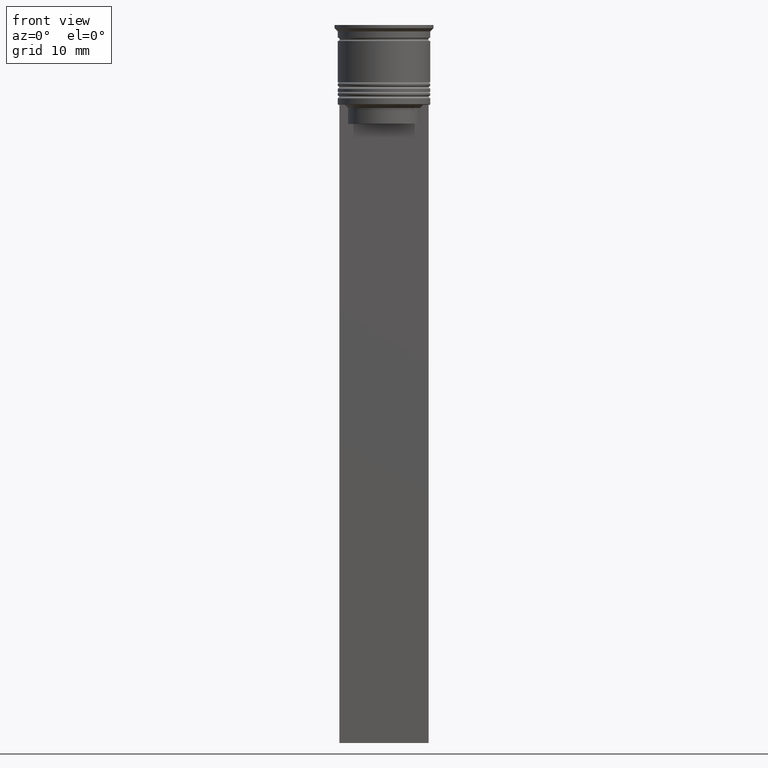
[diagram: clean part render]
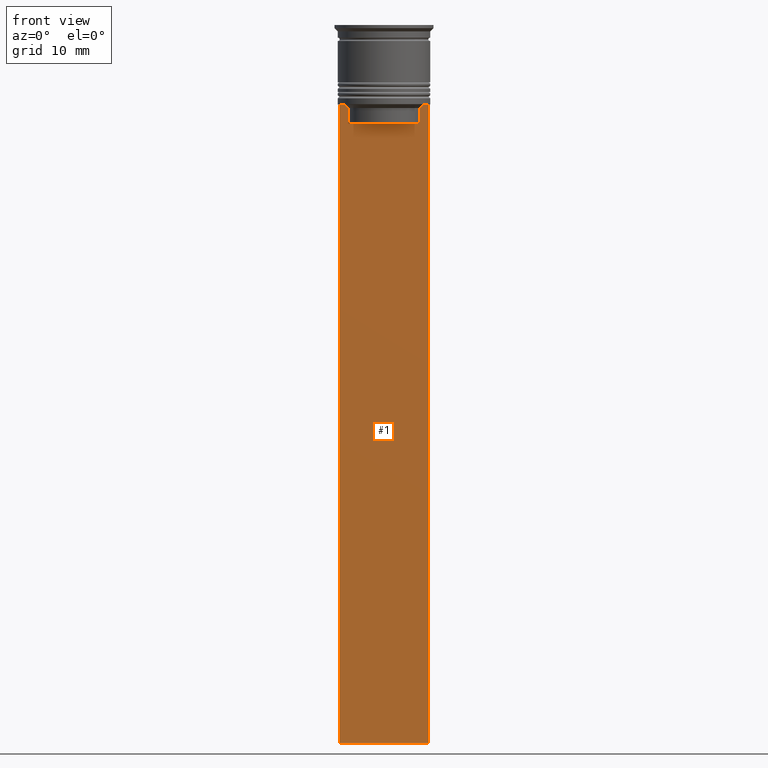
[diagram: same view with one face highlighted and labeled with its STEP entity id]
A machine part, front view. The second image highlights one B-rep face of the part: STEP entity #1.
In plain terms, the highlighted planar face has unit normal (0, -1, -0).
Its self-contained STEP definition (entity closure, byte-faithful):
#1 = ADVANCED_FACE ( 'NONE', ( #62 ), #232, .T. ) ;
#34 = EDGE_CURVE ( 'NONE', #726, #738, #1504, .T. ) ;
#62 = FACE_OUTER_BOUND ( 'NONE', #2196, .T. ) ;
#126 = VECTOR ( 'NONE', #448, 1000.000000000000000 ) ;
#135 = EDGE_CURVE ( 'NONE', #1166, #748, #146, .T. ) ;
#146 = B_SPLINE_CURVE_WITH_KNOTS ( 'NONE', 3,
 ( #1967, #2087, #1433, #1592 ),
 .UNSPECIFIED., .F., .F.,
 ( 4, 4 ),
 ( 0.02651134470867370918, 0.02721991123504334531 ),
 .UNSPECIFIED. ) ;
#196 = LINE ( 'NONE', #2167, #953 ) ;
#228 = CARTESIAN_POINT ( 'NONE',  ( -5.627832620112292794, -0.5000000000000022204, -15.50000000000000000 ) ) ;
#232 = PLANE ( 'NONE',  #841 ) ;
#293 = EDGE_CURVE ( 'NONE', #738, #1166, #196, .T. ) ;
#355 = DIRECTION ( 'NONE',  ( 1.000000000000000000, 0.000000000000000000, 0.000000000000000000 ) ) ;
#428 = VECTOR ( 'NONE', #2226, 1000.000000000000000 ) ;
#448 = DIRECTION ( 'NONE',  ( -1.000000000000000000, 0.000000000000000000, 0.000000000000000000 ) ) ;
#457 = LINE ( 'NONE', #1672, #2056 ) ;
#513 = CARTESIAN_POINT ( 'NONE',  ( -5.627832620112292794, -0.5000000000000022204, -13.00000000000000000 ) ) ;
#516 = EDGE_CURVE ( 'NONE', #2104, #1605, #457, .T. ) ;
#559 = CARTESIAN_POINT ( 'NONE',  ( -6.999999999999987566, -0.5000000000000022204, -12.50000000000000000 ) ) ;
#594 = CARTESIAN_POINT ( 'NONE',  ( 7.000000000000012434, -0.5000000000000022204, 1.535668847618198329 ) ) ;
#622 = ORIENTED_EDGE ( 'NONE', *, *, #944, .F. ) ;
#627 = CARTESIAN_POINT ( 'NONE',  ( -5.627832620112292794, -0.5000000000000022204, -13.00000000000000000 ) ) ;
#635 = ORIENTED_EDGE ( 'NONE', *, *, #1784, .F. ) ;
#726 = VERTEX_POINT ( 'NONE', #228 ) ;
#738 = VERTEX_POINT ( 'NONE', #1311 ) ;
#748 = VERTEX_POINT ( 'NONE', #1349 ) ;
#770 = EDGE_CURVE ( 'NONE', #2175, #1605, #2063, .T. ) ;
#775 = DIRECTION ( 'NONE',  ( 0.000000000000000000, 0.000000000000000000, -1.000000000000000000 ) ) ;
#777 = DIRECTION ( 'NONE',  ( 0.000000000000000000, 0.000000000000000000, -1.000000000000000000 ) ) ;
#841 = AXIS2_PLACEMENT_3D ( 'NONE', #2219, #1491, #2202 ) ;
#908 = B_SPLINE_CURVE_WITH_KNOTS ( 'NONE', 3,
 ( #2235, #1330, #2247, #627 ),
 .UNSPECIFIED., .F., .F.,
 ( 4, 4 ),
 ( 0.01045365750109871796, 0.01116204421161398619 ),
 .UNSPECIFIED. ) ;
#927 = ORIENTED_EDGE ( 'NONE', *, *, #770, .F. ) ;
#944 = EDGE_CURVE ( 'NONE', #2340, #2175, #2213, .T. ) ;
#953 = VECTOR ( 'NONE', #1468, 1000.000000000000000 ) ;
#978 = CARTESIAN_POINT ( 'NONE',  ( -5.627832620112292794, -0.5000000000000022204, 0.000000000000000000 ) ) ;
#1048 = VERTEX_POINT ( 'NONE', #1522 ) ;
#1073 = EDGE_CURVE ( 'NONE', #1048, #2191, #908, .T. ) ;
#1084 = VECTOR ( 'NONE', #355, 1000.000000000000000 ) ;
#1092 = CARTESIAN_POINT ( 'NONE',  ( 7.000000000000012434, -0.5000000000000022204, -12.50000000000000000 ) ) ;
#1097 = ORIENTED_EDGE ( 'NONE', *, *, #516, .T. ) ;
#1107 = VECTOR ( 'NONE', #1137, 1000.000000000000000 ) ;
#1113 = CARTESIAN_POINT ( 'NONE',  ( 7.000000000000012434, -0.5000000000000022204, -12.50000000000000000 ) ) ;
#1137 = DIRECTION ( 'NONE',  ( 1.000000000000000000, 0.000000000000000000, 0.000000000000000000 ) ) ;
#1166 = VERTEX_POINT ( 'NONE', #2316 ) ;
#1237 = LINE ( 'NONE', #1092, #1084 ) ;
#1248 = ORIENTED_EDGE ( 'NONE', *, *, #293, .F. ) ;
#1311 = CARTESIAN_POINT ( 'NONE',  ( 5.627832620112292794, -0.5000000000000022204, -15.50000000000000000 ) ) ;
#1324 = LINE ( 'NONE', #1684, #1873 ) ;
#1330 = CARTESIAN_POINT ( 'NONE',  ( -5.962396146966409738, -0.5000000000000022204, -12.66669130573587054 ) ) ;
#1349 = CARTESIAN_POINT ( 'NONE',  ( 6.129641098791995368, -0.5000000000000022204, -12.50000000000000000 ) ) ;
#1393 = CARTESIAN_POINT ( 'NONE',  ( -6.999999999999987566, -0.5000000000000022204, -112.5000000000000000 ) ) ;
#1399 = EDGE_CURVE ( 'NONE', #2191, #726, #1482, .T. ) ;
#1433 = CARTESIAN_POINT ( 'NONE',  ( 5.962396079681182570, -0.5000000000000022204, -12.66669137279835766 ) ) ;
#1457 = VECTOR ( 'NONE', #775, 1000.000000000000000 ) ;
#1468 = DIRECTION ( 'NONE',  ( -0.000000000000000000, -0.000000000000000000, 1.000000000000000000 ) ) ;
#1482 = LINE ( 'NONE', #978, #1457 ) ;
#1491 = DIRECTION ( 'NONE',  ( 0.000000000000000000, -1.000000000000000000, -0.000000000000000000 ) ) ;
#1504 = LINE ( 'NONE', #2042, #1107 ) ;
#1515 = DIRECTION ( 'NONE',  ( 1.000000000000000000, 0.000000000000000000, 0.000000000000000000 ) ) ;
#1522 = CARTESIAN_POINT ( 'NONE',  ( -6.129641098791995368, -0.5000000000000022204, -12.50000000000000000 ) ) ;
#1565 = ORIENTED_EDGE ( 'NONE', *, *, #2200, .F. ) ;
#1592 = CARTESIAN_POINT ( 'NONE',  ( 6.129641098791995368, -0.5000000000000022204, -12.50000000000000000 ) ) ;
#1605 = VERTEX_POINT ( 'NONE', #1393 ) ;
#1648 = ORIENTED_EDGE ( 'NONE', *, *, #1073, .F. ) ;
#1672 = CARTESIAN_POINT ( 'NONE',  ( -6.999999999999987566, -0.5000000000000022204, 1.535668847618198329 ) ) ;
#1684 = CARTESIAN_POINT ( 'NONE',  ( 7.000000000000012434, -0.5000000000000022204, -12.50000000000000000 ) ) ;
#1784 = EDGE_CURVE ( 'NONE', #748, #2340, #1324, .T. ) ;
#1873 = VECTOR ( 'NONE', #1515, 1000.000000000000000 ) ;
#1967 = CARTESIAN_POINT ( 'NONE',  ( 5.627832620112292794, -0.5000000000000022204, -13.00000000000000000 ) ) ;
#2042 = CARTESIAN_POINT ( 'NONE',  ( 0.000000000000000000, -0.5000000000000022204, -15.50000000000000000 ) ) ;
#2044 = ORIENTED_EDGE ( 'NONE', *, *, #135, .F. ) ;
#2056 = VECTOR ( 'NONE', #777, 1000.000000000000000 ) ;
#2063 = LINE ( 'NONE', #2227, #126 ) ;
#2087 = CARTESIAN_POINT ( 'NONE',  ( 5.795128760752288777, -0.5000000000000022204, -12.83336023406855375 ) ) ;
#2104 = VERTEX_POINT ( 'NONE', #559 ) ;
#2159 = CARTESIAN_POINT ( 'NONE',  ( 7.000000000000012434, -0.5000000000000022204, -112.5000000000000000 ) ) ;
#2167 = CARTESIAN_POINT ( 'NONE',  ( 5.627832620112292794, -0.5000000000000022204, 0.000000000000000000 ) ) ;
#2175 = VERTEX_POINT ( 'NONE', #2159 ) ;
#2191 = VERTEX_POINT ( 'NONE', #513 ) ;
#2196 = EDGE_LOOP ( 'NONE', ( #1648, #1565, #1097, #927, #622, #635, #2044, #1248, #2198, #2268 ) ) ;
#2198 = ORIENTED_EDGE ( 'NONE', *, *, #34, .F. ) ;
#2200 = EDGE_CURVE ( 'NONE', #2104, #1048, #1237, .T. ) ;
#2202 = DIRECTION ( 'NONE',  ( 0.000000000000000000, 0.000000000000000000, -1.000000000000000000 ) ) ;
#2213 = LINE ( 'NONE', #594, #428 ) ;
#2219 = CARTESIAN_POINT ( 'NONE',  ( 7.000000000000012434, -0.5000000000000022204, 1.535668847618198329 ) ) ;
#2226 = DIRECTION ( 'NONE',  ( 0.000000000000000000, 0.000000000000000000, -1.000000000000000000 ) ) ;
#2227 = CARTESIAN_POINT ( 'NONE',  ( 7.000000000000012434, -0.5000000000000022204, -112.5000000000000000 ) ) ;
#2235 = CARTESIAN_POINT ( 'NONE',  ( -6.129641098791995368, -0.5000000000000022204, -12.50000000000000000 ) ) ;
#2247 = CARTESIAN_POINT ( 'NONE',  ( -5.795128834036803234, -0.5000000000000022204, -12.83336016107156574 ) ) ;
#2268 = ORIENTED_EDGE ( 'NONE', *, *, #1399, .F. ) ;
#2316 = CARTESIAN_POINT ( 'NONE',  ( 5.627832620112292794, -0.5000000000000022204, -13.00000000000000000 ) ) ;
#2340 = VERTEX_POINT ( 'NONE', #1113 ) ;